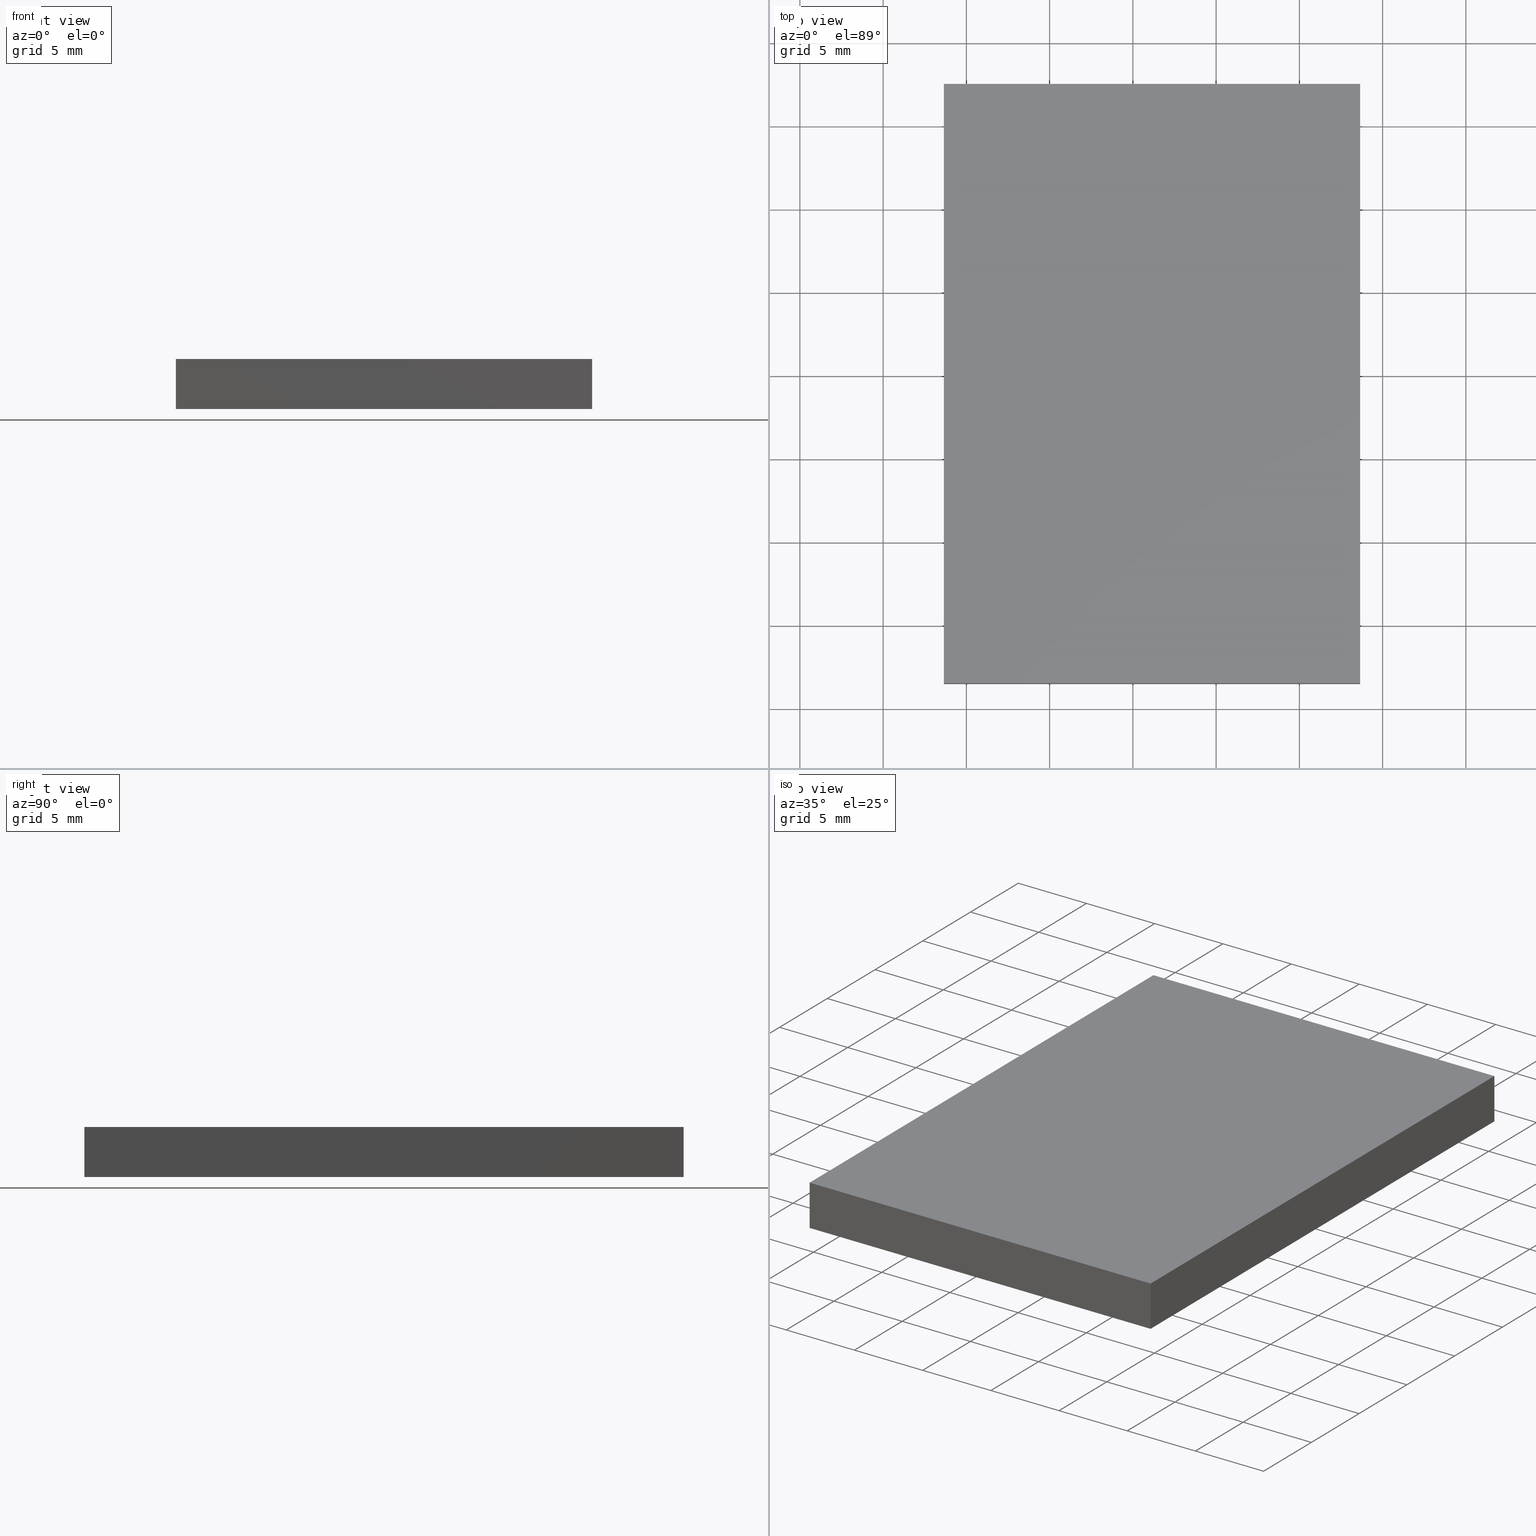
[diagram: canonical four-view strip — front | top / right | iso, engineering-drawing reading convention]
A machine part, canonical four-view strip (front | top / right | iso — engineering-drawing reading convention). The complete STEP part file that produces these views, byte-faithful:
ISO-10303-21;
HEADER;
FILE_DESCRIPTION (( 'STEP AP203' ),
    '1' );
FILE_NAME ('340524.STEP',
    '2019-07-30T07:30:01',
    ( '' ),
    ( '' ),
    'SwSTEP 2.0',
    'SolidWorks 2016',
    '' );
FILE_SCHEMA (( 'CONFIG_CONTROL_DESIGN' ));
ENDSEC;

DATA;
#1 = LOCAL_TIME ( 15, 30, 1.000000000000000000, #146 ) ;
#2 = ORIENTED_EDGE ( 'NONE', *, *, #97, .T. ) ;
#3 = DIRECTION ( 'NONE',  ( 1.000000000000000000, 0.0000000000000000000, 0.0000000000000000000 ) ) ;
#4 = EDGE_CURVE ( 'NONE', #11, #20, #75, .T. ) ;
#5 = SECURITY_CLASSIFICATION ( '', '', #280 ) ;
#6 = DATE_AND_TIME ( #196, #267 ) ;
#7 = ORIENTED_EDGE ( 'NONE', *, *, #205, .T. ) ;
#8 = PERSON_AND_ORGANIZATION ( #56, #142 ) ;
#9 = CC_DESIGN_PERSON_AND_ORGANIZATION_ASSIGNMENT ( #119, #157, ( #95 ) ) ;
#10 = ORIENTED_EDGE ( 'NONE', *, *, #113, .T. ) ;
#11 = VERTEX_POINT ( 'NONE', #101 ) ;
#12 = CARTESIAN_POINT ( 'NONE',  ( -6.351626016260162500, 7.520325203252024700, 3.000000000000000000 ) ) ;
#13 = CC_DESIGN_APPROVAL ( #110, ( #95 ) ) ;
#14 = LOCAL_TIME ( 15, 30, 1.000000000000000000, #281 ) ;
#15 = ORIENTED_EDGE ( 'NONE', *, *, #97, .F. ) ;
#16 = APPROVAL_ROLE ( '' ) ;
#17 = CARTESIAN_POINT ( 'NONE',  ( 0.0000000000000000000, 0.0000000000000000000, 0.0000000000000000000 ) ) ;
#18 =( LENGTH_UNIT ( ) NAMED_UNIT ( * ) SI_UNIT ( .MILLI., .METRE. ) );
#19 = DATE_TIME_ROLE ( 'classification_date' ) ;
#20 = VERTEX_POINT ( 'NONE', #12 ) ;
#21 = PRODUCT_DEFINITION_FORMATION_WITH_SPECIFIED_SOURCE ( '�κ�', '', #168, .NOT_KNOWN. ) ;
#22 = PERSON_AND_ORGANIZATION_ROLE ( 'creator' ) ;
#23 = DATE_AND_TIME ( #96, #90 ) ;
#24 = ORIENTED_EDGE ( 'NONE', *, *, #254, .F. ) ;
#25 = AXIS2_PLACEMENT_3D ( 'NONE', #181, #311, #313 ) ;
#26 = EDGE_CURVE ( 'NONE', #20, #49, #117, .T. ) ;
#27 = CC_DESIGN_PERSON_AND_ORGANIZATION_ASSIGNMENT ( #257, #132, ( #272 ) ) ;
#28 = DATE_AND_TIME ( #300, #1 ) ;
#29 = ORIENTED_EDGE ( 'NONE', *, *, #113, .F. ) ;
#30 = CC_DESIGN_PERSON_AND_ORGANIZATION_ASSIGNMENT ( #296, #262, ( #312 ) ) ;
#31 = APPROVAL_PERSON_ORGANIZATION ( #184, #41, #85 ) ;
#32 = DATE_AND_TIME ( #111, #93 ) ;
#33 = FACE_OUTER_BOUND ( 'NONE', #176, .T. ) ;
#34 = AXIS2_PLACEMENT_3D ( 'NONE', #216, #187, #138 ) ;
#35 = APPROVAL_DATE_TIME ( #32, #194 ) ;
#36 = FACE_OUTER_BOUND ( 'NONE', #44, .T. ) ;
#37 = APPROVAL ( #290, 'δָ��' ) ;
#38 = CARTESIAN_POINT ( 'NONE',  ( -6.351626016260158100, -28.47967479674797200, 0.0000000000000000000 ) ) ;
#39 = DATE_AND_TIME ( #148, #192 ) ;
#40 = PERSON_AND_ORGANIZATION ( #56, #142 ) ;
#41 = APPROVAL ( #180, 'δָ��' ) ;
#42 = DIRECTION ( 'NONE',  ( 1.000000000000000000, 0.0000000000000000000, 0.0000000000000000000 ) ) ;
#43 = SHAPE_DEFINITION_REPRESENTATION ( #52, #62 ) ;
#44 = EDGE_LOOP ( 'NONE', ( #199, #190, #143, #201 ) ) ;
#45 = CARTESIAN_POINT ( 'NONE',  ( 18.64837398373983700, 7.520325203252024700, 3.000000000000000000 ) ) ;
#46 = DIRECTION ( 'NONE',  ( -0.0000000000000000000, -0.0000000000000000000, -1.000000000000000000 ) ) ;
#47 = CC_DESIGN_APPROVAL ( #275, ( #5 ) ) ;
#48 = PLANE ( 'NONE',  #165 ) ;
#49 = VERTEX_POINT ( 'NONE', #264 ) ;
#50 = CC_DESIGN_PERSON_AND_ORGANIZATION_ASSIGNMENT ( #8, #286, ( #84 ) ) ;
#51 = PERSON_AND_ORGANIZATION ( #56, #142 ) ;
#52 = PRODUCT_DEFINITION_SHAPE ( 'NONE', 'NONE',  #95 ) ;
#53 = LOCAL_TIME ( 15, 30, 1.000000000000000000, #273 ) ;
#54 = FACE_OUTER_BOUND ( 'NONE', #222, .T. ) ;
#55 = VECTOR ( 'NONE', #198, 1000.000000000000000 ) ;
#56 = PERSON ( 'δָ��', 'δָ��', 'δָ��', ('δָ��'), ('δָ��'), ('δָ��') ) ;
#57 = LOCAL_TIME ( 15, 30, 1.000000000000000000, #206 ) ;
#58 = DIRECTION ( 'NONE',  ( -1.000000000000000000, -0.0000000000000000000, -0.0000000000000000000 ) ) ;
#59 = CLOSED_SHELL ( 'NONE', ( #298, #220, #274, #159, #73, #195 ) ) ;
#60 = CC_DESIGN_APPROVAL ( #41, ( #272 ) ) ;
#61 = APPROVAL_STATUS ( 'not_yet_approved' ) ;
#62 = ADVANCED_BREP_SHAPE_REPRESENTATION ( '340524', ( #209, #239 ), #266 ) ;
#63 = APPROVAL_PERSON_ORGANIZATION ( #189, #194, #16 ) ;
#64 = EDGE_LOOP ( 'NONE', ( #94, #24, #301, #208 ) ) ;
#65 = PERSON_AND_ORGANIZATION ( #56, #142 ) ;
#66 = CC_DESIGN_PERSON_AND_ORGANIZATION_ASSIGNMENT ( #162, #230, ( #5 ) ) ;
#67 = ORIENTED_EDGE ( 'NONE', *, *, #4, .F. ) ;
#68 = FACE_OUTER_BOUND ( 'NONE', #64, .T. ) ;
#69 = PRODUCT_DEFINITION ( 'δ֪', '', #21, #228 ) ;
#70 = VECTOR ( 'NONE', #46, 1000.000000000000000 ) ;
#71 = CARTESIAN_POINT ( 'NONE',  ( 18.64837398373983700, 7.520325203252024700, 0.0000000000000000000 ) ) ;
#72 = CC_DESIGN_APPROVAL ( #194, ( #21 ) ) ;
#73 = ADVANCED_FACE ( 'NONE', ( #33 ), #79, .T. ) ;
#74 = PRODUCT_RELATED_PRODUCT_CATEGORY ( 'detail', '', ( #168 ) ) ;
#75 = LINE ( 'NONE', #277, #186 ) ;
#76 = VECTOR ( 'NONE', #242, 1000.000000000000000 ) ;
#77 = AXIS2_PLACEMENT_3D ( 'NONE', #285, #295, #3 ) ;
#78 = DATE_TIME_ROLE ( 'classification_date' ) ;
#79 = PLANE ( 'NONE',  #144 ) ;
#80 = DATE_AND_TIME ( #141, #57 ) ;
#81 = PERSON_AND_ORGANIZATION ( #56, #142 ) ;
#82 = LINE ( 'NONE', #71, #76 ) ;
#83 = PERSON_AND_ORGANIZATION_ROLE ( 'creator' ) ;
#84 = PRODUCT_DEFINITION_FORMATION_WITH_SPECIFIED_SOURCE ( '�κ�', '', #312, .NOT_KNOWN. ) ;
#85 = APPROVAL_ROLE ( '' ) ;
#86 = CC_DESIGN_SECURITY_CLASSIFICATION ( #5, ( #21 ) ) ;
#87 = VECTOR ( 'NONE', #124, 1000.000000000000000 ) ;
#88 = ORIENTED_EDGE ( 'NONE', *, *, #226, .T. ) ;
#89 = CARTESIAN_POINT ( 'NONE',  ( -6.351626016260158100, -28.47967479674797200, 3.000000000000000000 ) ) ;
#90 = LOCAL_TIME ( 15, 30, 1.000000000000000000, #218 ) ;
#91 = PRODUCT_RELATED_PRODUCT_CATEGORY ( 'detail', '', ( #312 ) ) ;
#92 = LOCAL_TIME ( 15, 30, 1.000000000000000000, #268 ) ;
#93 = LOCAL_TIME ( 15, 30, 1.000000000000000000, #243 ) ;
#94 = ORIENTED_EDGE ( 'NONE', *, *, #135, .T. ) ;
#95 = PRODUCT_DEFINITION ( 'δ֪', '', #84, #278 ) ;
#96 = CALENDAR_DATE ( 2019, 30, 7 ) ;
#97 = EDGE_CURVE ( 'NONE', #108, #11, #251, .T. ) ;
#98 = CC_DESIGN_DATE_AND_TIME_ASSIGNMENT ( #153, #284, ( #69 ) ) ;
#99 = PERSON_AND_ORGANIZATION_ROLE ( 'design_supplier' ) ;
#100 = CARTESIAN_POINT ( 'NONE',  ( -6.351626016260162500, 7.520325203252024700, 3.000000000000000000 ) ) ;
#101 = CARTESIAN_POINT ( 'NONE',  ( 18.64837398373983700, 7.520325203252024700, 3.000000000000000000 ) ) ;
#102 = LOCAL_TIME ( 15, 30, 1.000000000000000000, #225 ) ;
#103 = PERSON_AND_ORGANIZATION_ROLE ( 'design_owner' ) ;
#104 = DIRECTION ( 'NONE',  ( 0.0000000000000000000, 0.0000000000000000000, 1.000000000000000000 ) ) ;
#105 = APPLICATION_PROTOCOL_DEFINITION ( 'international standard', 'config_control_design', 1994, #154 ) ;
#106 = DIRECTION ( 'NONE',  ( -0.0000000000000000000, -0.0000000000000000000, -1.000000000000000000 ) ) ;
#107 = LINE ( 'NONE', #231, #221 ) ;
#108 = VERTEX_POINT ( 'NONE', #237 ) ;
#109 = PLANE ( 'NONE',  #223 ) ;
#110 = APPROVAL ( #260, 'δָ��' ) ;
#111 = CALENDAR_DATE ( 2019, 30, 7 ) ;
#112 = APPLICATION_CONTEXT ( 'configuration controlled 3d designs of mechanical parts and assemblies' ) ;
#113 = EDGE_CURVE ( 'NONE', #11, #193, #309, .T. ) ;
#114 = CALENDAR_DATE ( 2019, 30, 7 ) ;
#115 = CC_DESIGN_APPROVAL ( #37, ( #84 ) ) ;
#116 = LINE ( 'NONE', #38, #233 ) ;
#117 = LINE ( 'NONE', #100, #219 ) ;
#118 = CC_DESIGN_DATE_AND_TIME_ASSIGNMENT ( #158, #213, ( #95 ) ) ;
#119 = PERSON_AND_ORGANIZATION ( #56, #142 ) ;
#120 = ORIENTED_EDGE ( 'NONE', *, *, #150, .T. ) ;
#121 = CARTESIAN_POINT ( 'NONE',  ( 18.64837398373984800, -28.47967479674797200, 3.000000000000000000 ) ) ;
#122 = LINE ( 'NONE', #167, #175 ) ;
#123 = EDGE_LOOP ( 'NONE', ( #88, #137, #67, #10 ) ) ;
#124 = DIRECTION ( 'NONE',  ( -0.0000000000000000000, -0.0000000000000000000, -1.000000000000000000 ) ) ;
#125 = DIRECTION ( 'NONE',  ( 0.0000000000000000000, -0.0000000000000000000, 1.000000000000000000 ) ) ;
#126 = PERSON_AND_ORGANIZATION ( #56, #142 ) ;
#127 = CARTESIAN_POINT ( 'NONE',  ( 18.64837398373984800, -28.47967479674797200, 0.0000000000000000000 ) ) ;
#128 = ORIENTED_EDGE ( 'NONE', *, *, #247, .T. ) ;
#129 = CC_DESIGN_SECURITY_CLASSIFICATION ( #272, ( #84 ) ) ;
#130 = DIRECTION ( 'NONE',  ( 1.204669080539449300E-016, -1.000000000000000000, 0.0000000000000000000 ) ) ;
#131 = ORIENTED_EDGE ( 'NONE', *, *, #205, .F. ) ;
#132 = PERSON_AND_ORGANIZATION_ROLE ( 'classification_officer' ) ;
#133 = PLANE ( 'NONE',  #34 ) ;
#134 = EDGE_LOOP ( 'NONE', ( #140, #29, #15, #7 ) ) ;
#135 = EDGE_CURVE ( 'NONE', #49, #283, #212, .T. ) ;
#136 = CALENDAR_DATE ( 2019, 30, 7 ) ;
#137 = ORIENTED_EDGE ( 'NONE', *, *, #26, .F. ) ;
#138 = DIRECTION ( 'NONE',  ( 0.0000000000000000000, -0.0000000000000000000, -1.000000000000000000 ) ) ;
#139 = CALENDAR_DATE ( 2019, 30, 7 ) ;
#140 = ORIENTED_EDGE ( 'NONE', *, *, #163, .T. ) ;
#141 = CALENDAR_DATE ( 2019, 30, 7 ) ;
#142 = ORGANIZATION ( 'δָ��', 'δָ��', '' ) ;
#143 = ORIENTED_EDGE ( 'NONE', *, *, #163, .F. ) ;
#144 = AXIS2_PLACEMENT_3D ( 'NONE', #253, #292, #185 ) ;
#145 = CARTESIAN_POINT ( 'NONE',  ( -6.351626016260158100, -28.47967479674797200, 3.000000000000000000 ) ) ;
#146 = COORDINATED_UNIVERSAL_TIME_OFFSET ( 8, 0, .AHEAD. ) ;
#147 = ORIENTED_EDGE ( 'NONE', *, *, #150, .F. ) ;
#148 = CALENDAR_DATE ( 2019, 30, 7 ) ;
#149 = PERSON_AND_ORGANIZATION ( #56, #142 ) ;
#150 = EDGE_CURVE ( 'NONE', #265, #108, #241, .T. ) ;
#151 = APPROVAL_STATUS ( 'not_yet_approved' ) ;
#152 = CARTESIAN_POINT ( 'NONE',  ( -6.351626016260158100, -28.47967479674797200, 3.000000000000000000 ) ) ;
#153 = DATE_AND_TIME ( #258, #92 ) ;
#154 = APPLICATION_CONTEXT ( 'configuration controlled 3d designs of mechanical parts and assemblies' ) ;
#155 = FACE_OUTER_BOUND ( 'NONE', #123, .T. ) ;
#156 = DIRECTION ( 'NONE',  ( 1.000000000000000000, 1.204669080539449300E-016, -0.0000000000000000000 ) ) ;
#157 = PERSON_AND_ORGANIZATION_ROLE ( 'creator' ) ;
#158 = DATE_AND_TIME ( #114, #14 ) ;
#159 = ADVANCED_FACE ( 'NONE', ( #155 ), #133, .F. ) ;
#160 = AXIS2_PLACEMENT_3D ( 'NONE', #145, #173, #125 ) ;
#161 = DIRECTION ( 'NONE',  ( 1.000000000000000000, 0.0000000000000000000, 0.0000000000000000000 ) ) ;
#162 = PERSON_AND_ORGANIZATION ( #56, #142 ) ;
#163 = EDGE_CURVE ( 'NONE', #246, #193, #82, .T. ) ;
#164 = APPROVAL_PERSON_ORGANIZATION ( #149, #227, #256 ) ;
#165 = AXIS2_PLACEMENT_3D ( 'NONE', #245, #244, #302 ) ;
#166 = VECTOR ( 'NONE', #161, 1000.000000000000000 ) ;
#167 = CARTESIAN_POINT ( 'NONE',  ( -6.351626016260162500, 7.520325203252024700, 0.0000000000000000000 ) ) ;
#168 = PRODUCT ( '340524', '340524', '', ( #249 ) ) ;
#169 = APPROVAL_DATE_TIME ( #39, #110 ) ;
#170 = VECTOR ( 'NONE', #106, 1000.000000000000000 ) ;
#171 = APPLICATION_PROTOCOL_DEFINITION ( 'international standard', 'config_control_design', 1994, #172 ) ;
#172 = APPLICATION_CONTEXT ( 'configuration controlled 3d designs of mechanical parts and assemblies' ) ;
#173 = DIRECTION ( 'NONE',  ( 0.0000000000000000000, 1.000000000000000000, 0.0000000000000000000 ) ) ;
#174 = APPROVAL_STATUS ( 'not_yet_approved' ) ;
#175 = VECTOR ( 'NONE', #58, 1000.000000000000000 ) ;
#176 = EDGE_LOOP ( 'NONE', ( #289, #120, #2, #229 ) ) ;
#177 = MECHANICAL_CONTEXT ( 'NONE', #112, 'mechanical' ) ;
#178 =( NAMED_UNIT ( * ) PLANE_ANGLE_UNIT ( ) SI_UNIT ( $, .RADIAN. ) );
#179 = PRODUCT_DEFINITION_SHAPE ( 'NONE', 'NONE',  #69 ) ;
#180 = APPROVAL_STATUS ( 'not_yet_approved' ) ;
#181 = CARTESIAN_POINT ( 'NONE',  ( 18.64837398373983700, 7.520325203252024700, 3.000000000000000000 ) ) ;
#182 = APPROVAL_ROLE ( '' ) ;
#183 = DIRECTION ( 'NONE',  ( -1.204669080539449300E-016, 1.000000000000000000, 0.0000000000000000000 ) ) ;
#184 = PERSON_AND_ORGANIZATION ( #56, #142 ) ;
#185 = DIRECTION ( 'NONE',  ( 1.000000000000000000, 0.0000000000000000000, 0.0000000000000000000 ) ) ;
#186 = VECTOR ( 'NONE', #202, 1000.000000000000000 ) ;
#187 = DIRECTION ( 'NONE',  ( 0.0000000000000000000, -1.000000000000000000, 0.0000000000000000000 ) ) ;
#188 = DIRECTION ( 'NONE',  ( -2.891205793294678800E-016, 1.000000000000000000, -0.0000000000000000000 ) ) ;
#189 = PERSON_AND_ORGANIZATION ( #56, #142 ) ;
#190 = ORIENTED_EDGE ( 'NONE', *, *, #226, .F. ) ;
#191 = CARTESIAN_POINT ( 'NONE',  ( -6.351626016260162500, 7.520325203252024700, 0.0000000000000000000 ) ) ;
#192 = LOCAL_TIME ( 15, 30, 1.000000000000000000, #263 ) ;
#193 = VERTEX_POINT ( 'NONE', #276 ) ;
#194 = APPROVAL ( #174, 'δָ��' ) ;
#195 = ADVANCED_FACE ( 'NONE', ( #36 ), #48, .F. ) ;
#196 = CALENDAR_DATE ( 2019, 30, 7 ) ;
#197 = APPROVAL_DATE_TIME ( #28, #227 ) ;
#198 = DIRECTION ( 'NONE',  ( 1.204669080539449300E-016, -1.000000000000000000, 0.0000000000000000000 ) ) ;
#199 = ORIENTED_EDGE ( 'NONE', *, *, #135, .F. ) ;
#200 = CARTESIAN_POINT ( 'NONE',  ( -6.351626016260158100, -28.47967479674797200, 3.000000000000000000 ) ) ;
#201 = ORIENTED_EDGE ( 'NONE', *, *, #247, .F. ) ;
#202 = DIRECTION ( 'NONE',  ( -1.000000000000000000, -0.0000000000000000000, -0.0000000000000000000 ) ) ;
#203 = CARTESIAN_POINT ( 'NONE',  ( -6.351626016260158100, -28.47967479674797200, 0.0000000000000000000 ) ) ;
#204 = PERSON_AND_ORGANIZATION_ROLE ( 'creator' ) ;
#205 = EDGE_CURVE ( 'NONE', #108, #246, #288, .T. ) ;
#206 = COORDINATED_UNIVERSAL_TIME_OFFSET ( 8, 0, .AHEAD. ) ;
#207 = CC_DESIGN_APPROVAL ( #227, ( #69 ) ) ;
#208 = ORIENTED_EDGE ( 'NONE', *, *, #26, .T. ) ;
#209 = MANIFOLD_SOLID_BREP ( '͹̨-����1', #59 ) ;
#210 = APPROVAL_ROLE ( '' ) ;
#211 = PLANE ( 'NONE',  #25 ) ;
#212 = LINE ( 'NONE', #191, #55 ) ;
#213 = DATE_TIME_ROLE ( 'creation_date' ) ;
#214 = CC_DESIGN_PERSON_AND_ORGANIZATION_ASSIGNMENT ( #293, #22, ( #84 ) ) ;
#215 = APPLICATION_PROTOCOL_DEFINITION ( 'international standard', 'config_control_design', 1994, #112 ) ;
#216 = CARTESIAN_POINT ( 'NONE',  ( -6.351626016260162500, 7.520325203252024700, 3.000000000000000000 ) ) ;
#217 = APPROVAL_PERSON_ORGANIZATION ( #65, #37, #182 ) ;
#218 = COORDINATED_UNIVERSAL_TIME_OFFSET ( 8, 0, .AHEAD. ) ;
#219 = VECTOR ( 'NONE', #305, 1000.000000000000000 ) ;
#220 = ADVANCED_FACE ( 'NONE', ( #54 ), #248, .F. ) ;
#221 = VECTOR ( 'NONE', #130, 1000.000000000000000 ) ;
#222 = EDGE_LOOP ( 'NONE', ( #128, #131, #147, #259 ) ) ;
#223 = AXIS2_PLACEMENT_3D ( 'NONE', #310, #156, #183 ) ;
#224 = APPROVAL_DATE_TIME ( #23, #275 ) ;
#225 = COORDINATED_UNIVERSAL_TIME_OFFSET ( 8, 0, .AHEAD. ) ;
#226 = EDGE_CURVE ( 'NONE', #193, #49, #122, .T. ) ;
#227 = APPROVAL ( #151, 'δָ��' ) ;
#228 = DESIGN_CONTEXT ( 'detailed design', #172, 'design' ) ;
#229 = ORIENTED_EDGE ( 'NONE', *, *, #4, .T. ) ;
#230 = PERSON_AND_ORGANIZATION_ROLE ( 'classification_officer' ) ;
#231 = CARTESIAN_POINT ( 'NONE',  ( -6.351626016260162500, 7.520325203252024700, 3.000000000000000000 ) ) ;
#232 = DATE_AND_TIME ( #136, #102 ) ;
#233 = VECTOR ( 'NONE', #42, 1000.000000000000000 ) ;
#234 = SECURITY_CLASSIFICATION_LEVEL ( 'unclassified' ) ;
#235 =( NAMED_UNIT ( * ) SI_UNIT ( $, .STERADIAN. ) SOLID_ANGLE_UNIT ( ) );
#236 = FACE_OUTER_BOUND ( 'NONE', #134, .T. ) ;
#237 = CARTESIAN_POINT ( 'NONE',  ( 18.64837398373984800, -28.47967479674797200, 3.000000000000000000 ) ) ;
#238 = EDGE_CURVE ( 'NONE', #20, #265, #107, .T. ) ;
#239 = AXIS2_PLACEMENT_3D ( 'NONE', #17, #104, #270 ) ;
#240 = LINE ( 'NONE', #152, #170 ) ;
#241 = LINE ( 'NONE', #200, #166 ) ;
#242 = DIRECTION ( 'NONE',  ( -2.891205793294678800E-016, 1.000000000000000000, -0.0000000000000000000 ) ) ;
#243 = COORDINATED_UNIVERSAL_TIME_OFFSET ( 8, 0, .AHEAD. ) ;
#244 = DIRECTION ( 'NONE',  ( -0.0000000000000000000, 0.0000000000000000000, 1.000000000000000000 ) ) ;
#245 = CARTESIAN_POINT ( 'NONE',  ( 0.0000000000000000000, 0.0000000000000000000, 0.0000000000000000000 ) ) ;
#246 = VERTEX_POINT ( 'NONE', #127 ) ;
#247 = EDGE_CURVE ( 'NONE', #283, #246, #116, .T. ) ;
#248 = PLANE ( 'NONE',  #160 ) ;
#249 = MECHANICAL_CONTEXT ( 'NONE', #304, 'mechanical' ) ;
#250 = APPROVAL_PERSON_ORGANIZATION ( #126, #110, #287 ) ;
#251 = LINE ( 'NONE', #45, #269 ) ;
#252 = APPLICATION_PROTOCOL_DEFINITION ( 'international standard', 'config_control_design', 1994, #304 ) ;
#253 = CARTESIAN_POINT ( 'NONE',  ( 0.0000000000000000000, 0.0000000000000000000, 3.000000000000000000 ) ) ;
#254 = EDGE_CURVE ( 'NONE', #265, #283, #240, .T. ) ;
#255 = CC_DESIGN_PERSON_AND_ORGANIZATION_ASSIGNMENT ( #306, #99, ( #21 ) ) ;
#256 = APPROVAL_ROLE ( '' ) ;
#257 = PERSON_AND_ORGANIZATION ( #56, #142 ) ;
#258 = CALENDAR_DATE ( 2019, 30, 7 ) ;
#259 = ORIENTED_EDGE ( 'NONE', *, *, #254, .T. ) ;
#260 = APPROVAL_STATUS ( 'not_yet_approved' ) ;
#261 = CARTESIAN_POINT ( 'NONE',  ( 18.64837398373983700, 7.520325203252024700, 3.000000000000000000 ) ) ;
#262 = PERSON_AND_ORGANIZATION_ROLE ( 'design_owner' ) ;
#263 = COORDINATED_UNIVERSAL_TIME_OFFSET ( 8, 0, .AHEAD. ) ;
#264 = CARTESIAN_POINT ( 'NONE',  ( -6.351626016260162500, 7.520325203252024700, 0.0000000000000000000 ) ) ;
#265 = VERTEX_POINT ( 'NONE', #89 ) ;
#266 =( GEOMETRIC_REPRESENTATION_CONTEXT ( 3 ) GLOBAL_UNCERTAINTY_ASSIGNED_CONTEXT ( ( #299 ) ) GLOBAL_UNIT_ASSIGNED_CONTEXT ( ( #18, #178, #235 ) ) REPRESENTATION_CONTEXT ( 'NONE', 'WORKASPACE' ) );
#267 = LOCAL_TIME ( 15, 30, 1.000000000000000000, #297 ) ;
#268 = COORDINATED_UNIVERSAL_TIME_OFFSET ( 8, 0, .AHEAD. ) ;
#269 = VECTOR ( 'NONE', #188, 1000.000000000000000 ) ;
#270 = DIRECTION ( 'NONE',  ( 1.000000000000000000, 0.0000000000000000000, 0.0000000000000000000 ) ) ;
#271 = APPROVAL_DATE_TIME ( #308, #37 ) ;
#272 = SECURITY_CLASSIFICATION ( '', '', #234 ) ;
#273 = COORDINATED_UNIVERSAL_TIME_OFFSET ( 8, 0, .AHEAD. ) ;
#274 = ADVANCED_FACE ( 'NONE', ( #236 ), #211, .F. ) ;
#275 = APPROVAL ( #61, 'δָ��' ) ;
#276 = CARTESIAN_POINT ( 'NONE',  ( 18.64837398373983700, 7.520325203252024700, 0.0000000000000000000 ) ) ;
#277 = CARTESIAN_POINT ( 'NONE',  ( -6.351626016260162500, 7.520325203252024700, 3.000000000000000000 ) ) ;
#278 = DESIGN_CONTEXT ( 'detailed design', #154, 'design' ) ;
#279 = CC_DESIGN_DATE_AND_TIME_ASSIGNMENT ( #6, #19, ( #272 ) ) ;
#280 = SECURITY_CLASSIFICATION_LEVEL ( 'unclassified' ) ;
#281 = COORDINATED_UNIVERSAL_TIME_OFFSET ( 8, 0, .AHEAD. ) ;
#282 = APPROVAL_PERSON_ORGANIZATION ( #40, #275, #210 ) ;
#283 = VERTEX_POINT ( 'NONE', #203 ) ;
#284 = DATE_TIME_ROLE ( 'creation_date' ) ;
#285 = CARTESIAN_POINT ( 'NONE',  ( 0.0000000000000000000, 0.0000000000000000000, 0.0000000000000000000 ) ) ;
#286 = PERSON_AND_ORGANIZATION_ROLE ( 'design_supplier' ) ;
#287 = APPROVAL_ROLE ( '' ) ;
#288 = LINE ( 'NONE', #121, #87 ) ;
#289 = ORIENTED_EDGE ( 'NONE', *, *, #238, .T. ) ;
#290 = APPROVAL_STATUS ( 'not_yet_approved' ) ;
#291 = CC_DESIGN_DATE_AND_TIME_ASSIGNMENT ( #232, #78, ( #5 ) ) ;
#292 = DIRECTION ( 'NONE',  ( -0.0000000000000000000, 0.0000000000000000000, 1.000000000000000000 ) ) ;
#293 = PERSON_AND_ORGANIZATION ( #56, #142 ) ;
#294 = CC_DESIGN_PERSON_AND_ORGANIZATION_ASSIGNMENT ( #315, #83, ( #69 ) ) ;
#295 = DIRECTION ( 'NONE',  ( 0.0000000000000000000, 0.0000000000000000000, 1.000000000000000000 ) ) ;
#296 = PERSON_AND_ORGANIZATION ( #56, #142 ) ;
#297 = COORDINATED_UNIVERSAL_TIME_OFFSET ( 8, 0, .AHEAD. ) ;
#298 = ADVANCED_FACE ( 'NONE', ( #68 ), #109, .F. ) ;
#299 = UNCERTAINTY_MEASURE_WITH_UNIT (LENGTH_MEASURE( 1.000000000000000100E-005 ), #18, 'distance_accuracy_value', 'NONE');
#300 = CALENDAR_DATE ( 2019, 30, 7 ) ;
#301 = ORIENTED_EDGE ( 'NONE', *, *, #238, .F. ) ;
#302 = DIRECTION ( 'NONE',  ( 1.000000000000000000, 0.0000000000000000000, 0.0000000000000000000 ) ) ;
#303 = CC_DESIGN_PERSON_AND_ORGANIZATION_ASSIGNMENT ( #81, #103, ( #168 ) ) ;
#304 = APPLICATION_CONTEXT ( 'configuration controlled 3d designs of mechanical parts and assemblies' ) ;
#305 = DIRECTION ( 'NONE',  ( -0.0000000000000000000, -0.0000000000000000000, -1.000000000000000000 ) ) ;
#306 = PERSON_AND_ORGANIZATION ( #56, #142 ) ;
#307 = CC_DESIGN_PERSON_AND_ORGANIZATION_ASSIGNMENT ( #51, #204, ( #21 ) ) ;
#308 = DATE_AND_TIME ( #139, #53 ) ;
#309 = LINE ( 'NONE', #261, #70 ) ;
#310 = CARTESIAN_POINT ( 'NONE',  ( -6.351626016260162500, 7.520325203252024700, 3.000000000000000000 ) ) ;
#311 = DIRECTION ( 'NONE',  ( -1.000000000000000000, -2.891205793294678800E-016, 0.0000000000000000000 ) ) ;
#312 = PRODUCT ( '340524', '340524', '', ( #177 ) ) ;
#313 = DIRECTION ( 'NONE',  ( 2.891205793294678800E-016, -1.000000000000000000, 0.0000000000000000000 ) ) ;
#314 = APPROVAL_DATE_TIME ( #80, #41 ) ;
#315 = PERSON_AND_ORGANIZATION ( #56, #142 ) ;
ENDSEC;
END-ISO-10303-21;
